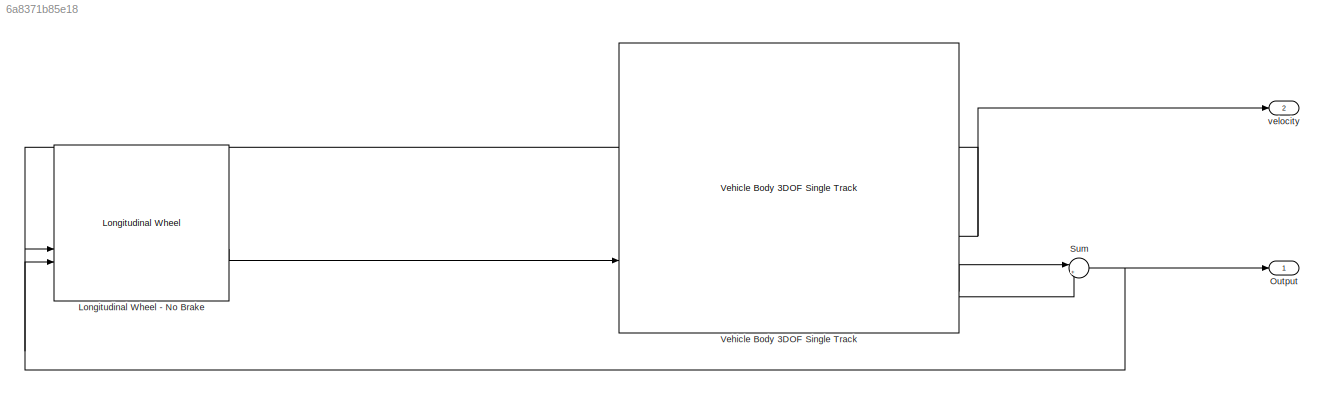
MODEL slx_6a8371b85e18
KIND model
CONFIG AbsTol = auto
CONFIG EnableMultiTasking = off
CONFIG FixedStep = auto
CONFIG MaxStep = auto
CONFIG MinStep = auto
CONFIG RelTol = 1e-3
CONFIG SampleTimeConstraint = Unconstrained
CONFIG SolverName = VariableStepAuto
CONFIG StartTime = 0.0
CONFIG StopTime = 10.0
BLOCK [Reference] Longitudinal Wheel - No Brake  REF=autolibshared/Longitudinal Wheel
  LibrarySourceBlock = vehdynlibtire/Longitudinal Wheel - No Brake
  SourceBlock = autolibshared/Longitudinal Wheel
  SourceType = Longitudinal Wheel
BLOCK [Outport] Output
BLOCK [Sum] Sum
  Inputs = |++
BLOCK [Reference] Vehicle Body 3DOF Single Track  REF=autolibshared/Vehicle Body 3DOF Single Track
  LibrarySourceBlock = vehdynlibeom/Vehicle Body 3DOF Single Track
  SourceBlock = autolibshared/Vehicle Body 3DOF Single Track
  SourceType = Vehicle Body 3DOF Lateral
BLOCK [Outport] velocity
  Port = 2
LINE Longitudinal Wheel - No Brake:2 -> Vehicle Body 3DOF Single Track:3
NET Sum:1 -> Longitudinal Wheel - No Brake:3, Output:1
NET Vehicle Body 3DOF Single Track:2 -> Longitudinal Wheel - No Brake:2, velocity:1
LINE Vehicle Body 3DOF Single Track:6 -> Sum:1
LINE Vehicle Body 3DOF Single Track:7 -> Sum:2
note: NET lines group one-source signal fan-out (src -> all destinations, sorted); 1:1 wires keep LINE
